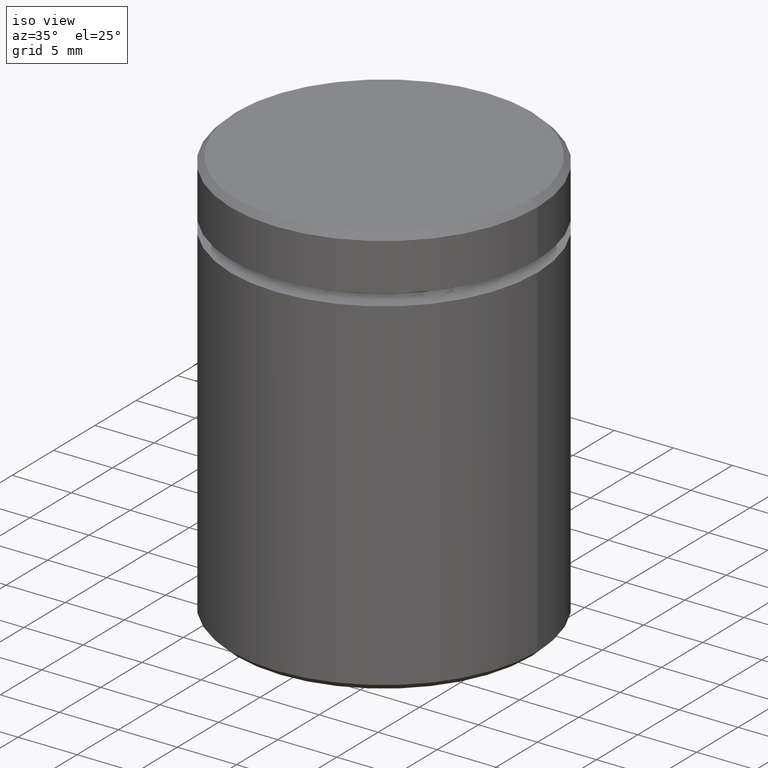
[diagram: clean part render]
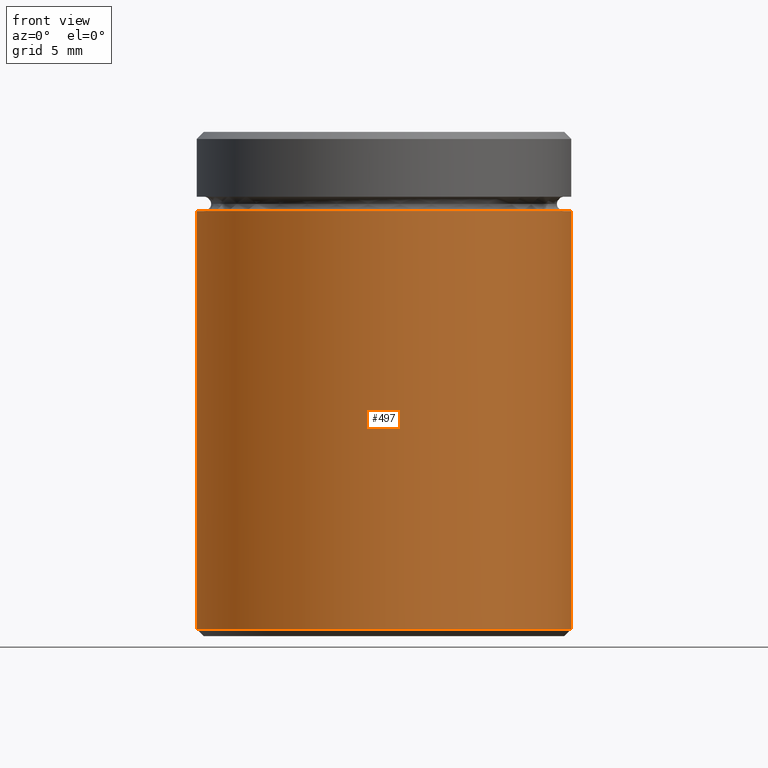
[diagram: tour spotlight — one face highlighted and labeled with its STEP entity id]
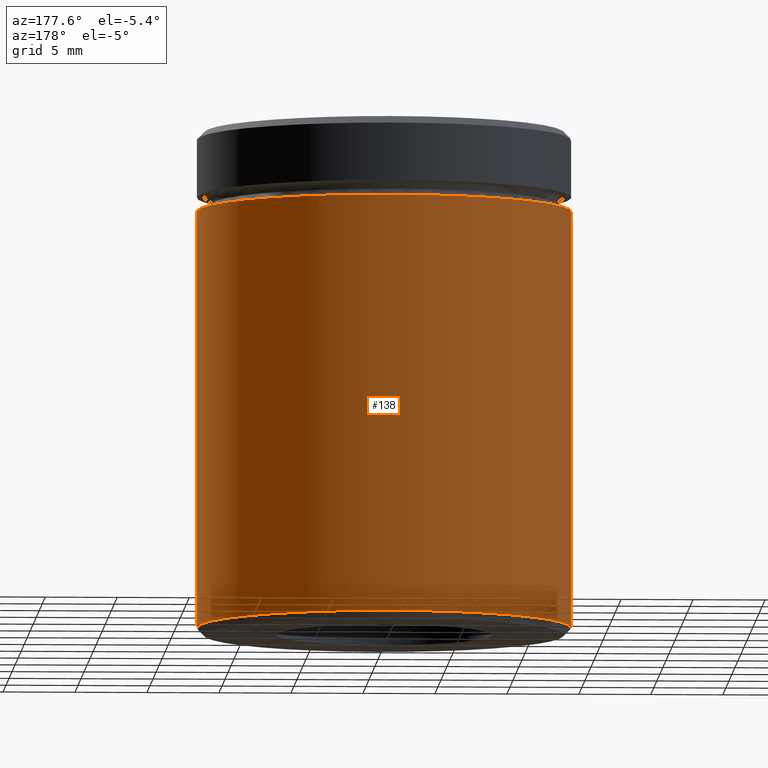
[diagram: tour spotlight — one face highlighted and labeled with its STEP entity id]
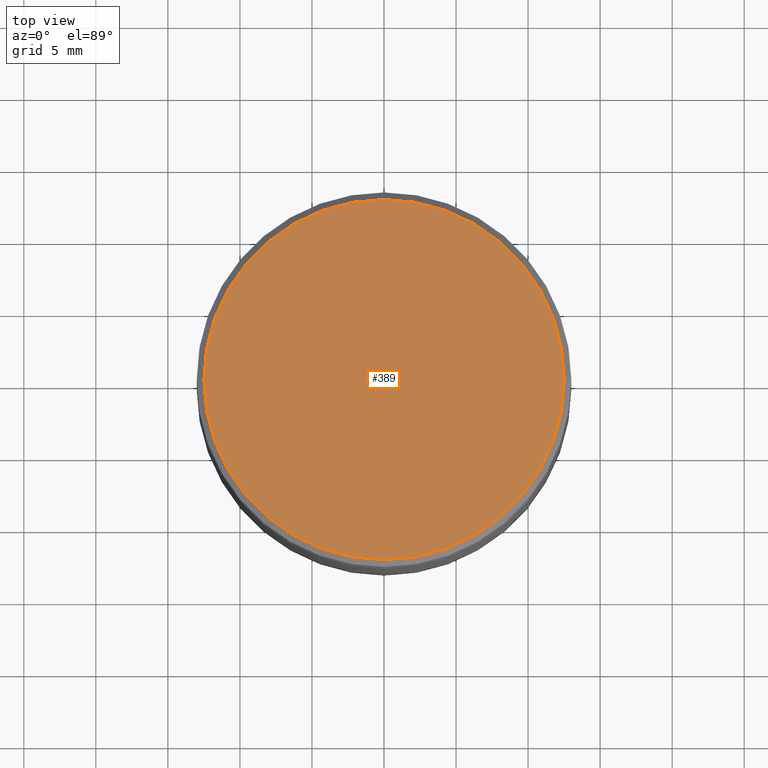
[diagram: tour spotlight — one face highlighted and labeled with its STEP entity id]
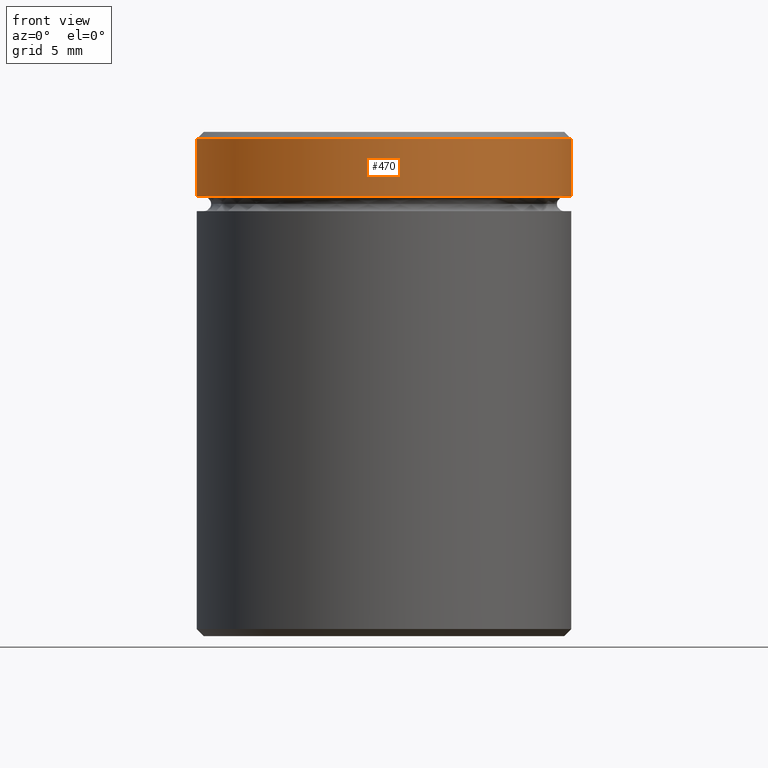
[diagram: tour spotlight — one face highlighted and labeled with its STEP entity id]
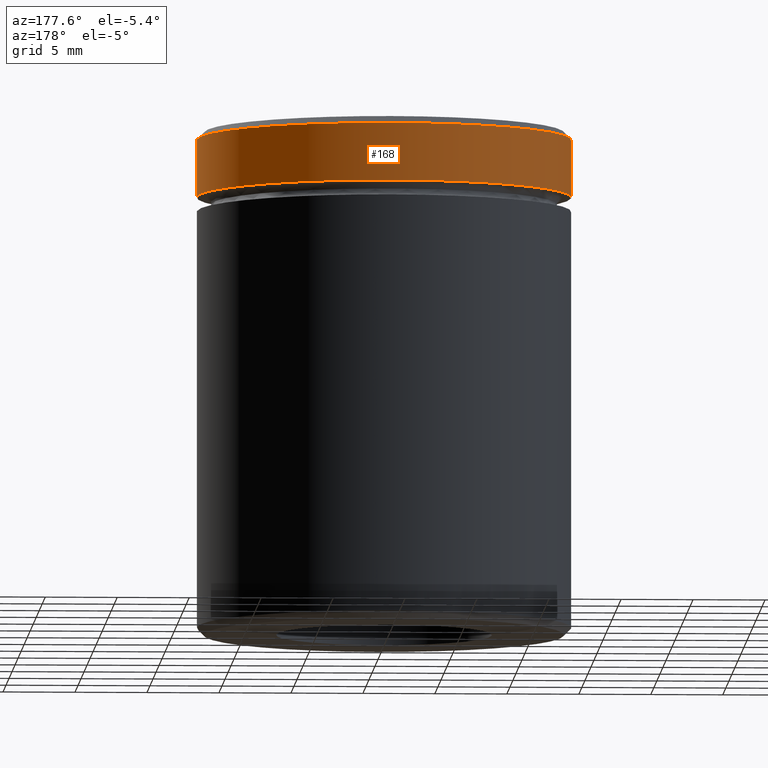
[diagram: tour spotlight — one face highlighted and labeled with its STEP entity id]
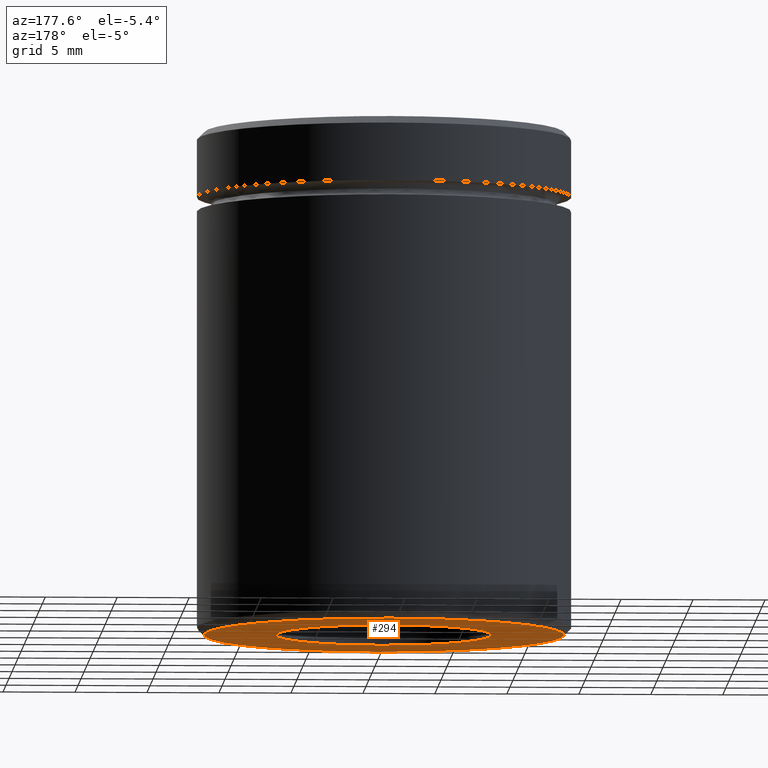
[diagram: tour spotlight — one face highlighted and labeled with its STEP entity id]
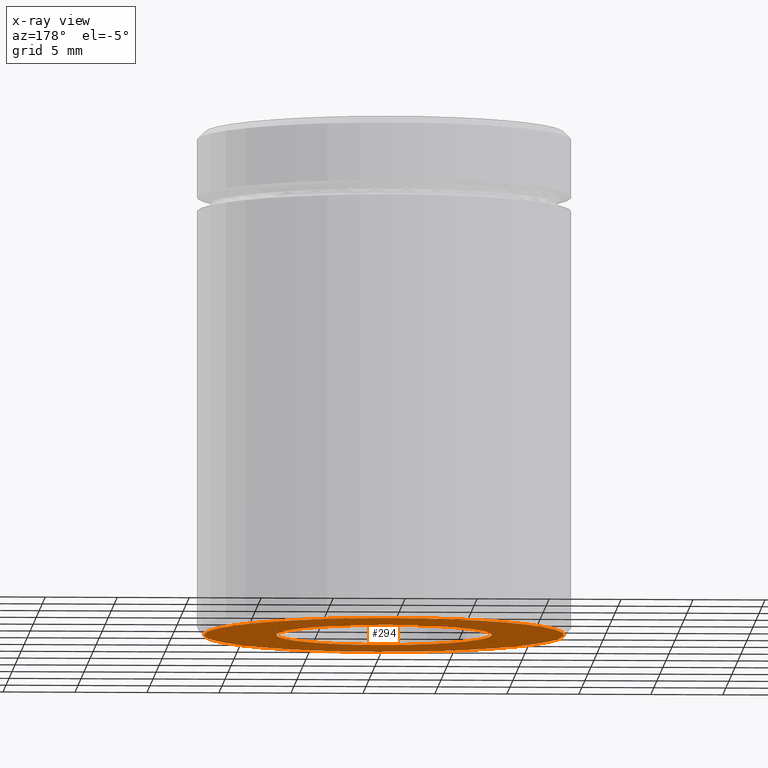
[diagram: x-ray of the same camera — body ghosted, this tour face saturated]
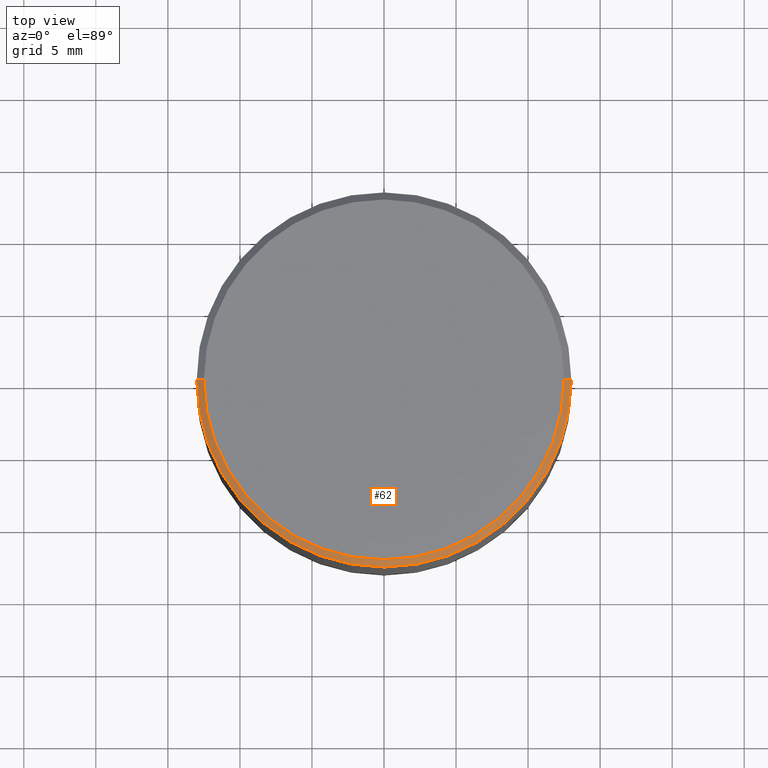
[diagram: tour spotlight — one face highlighted and labeled with its STEP entity id]
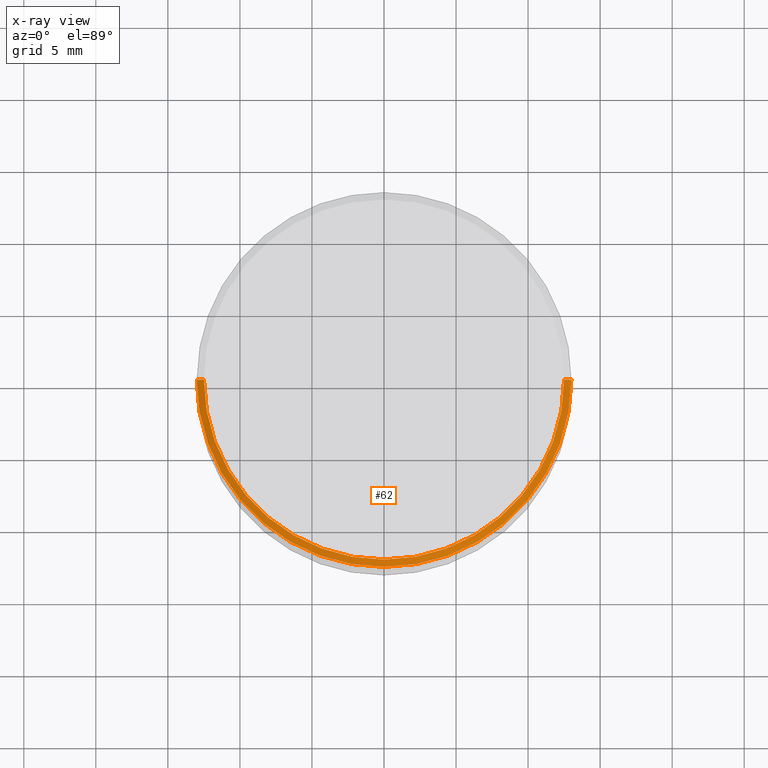
[diagram: x-ray of the same camera — body ghosted, this tour face saturated]
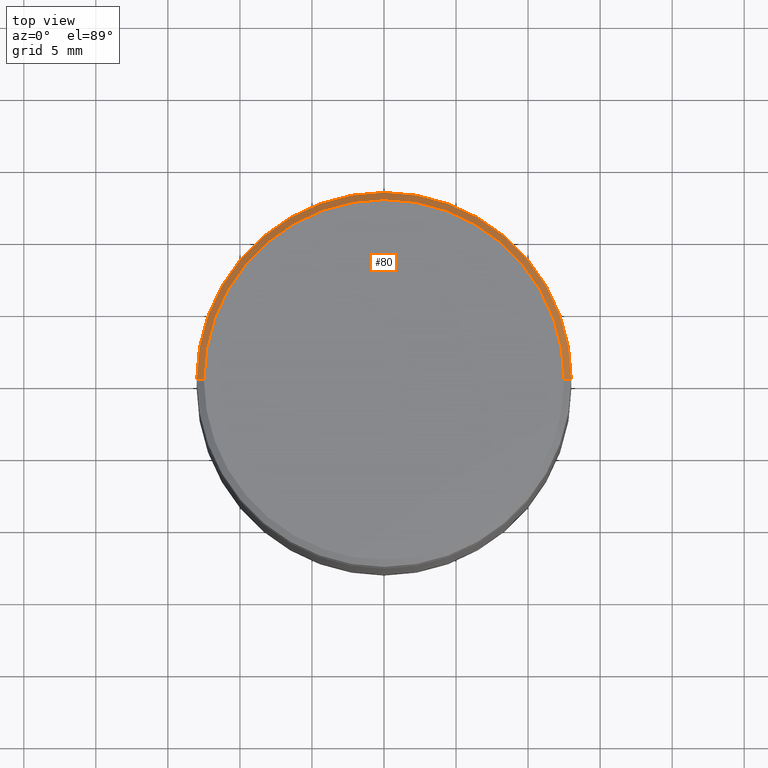
[diagram: tour spotlight — one face highlighted and labeled with its STEP entity id]
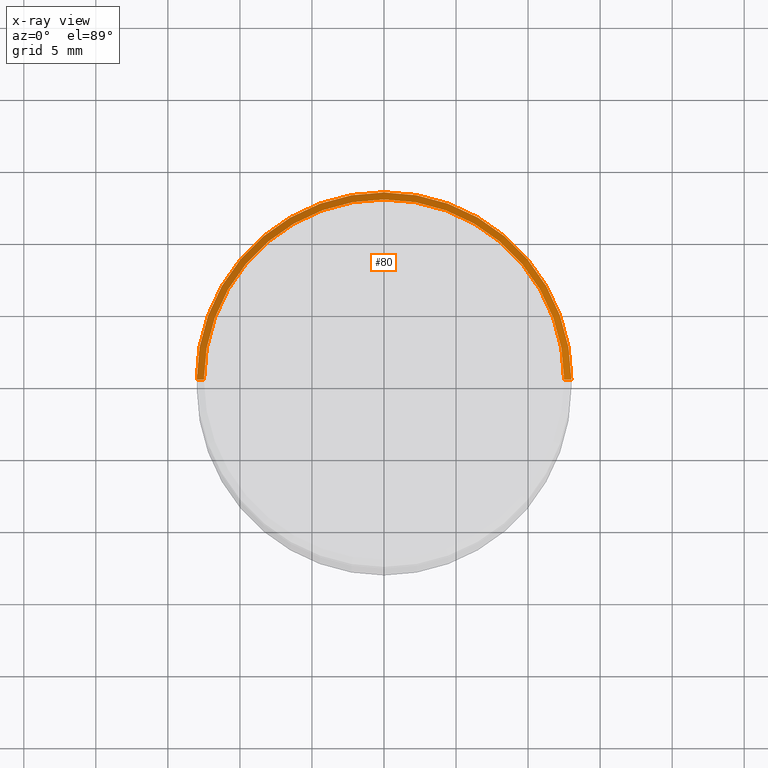
[diagram: x-ray of the same camera — body ghosted, this tour face saturated]
A machine part: a face-by-face anatomy tour. The part has 19 B-rep faces; the first image is the clean iso view, then the 8 largest visible faces are spotlighted one at a time (largest first), each with its STEP entity span.

Face 1 — front view, entity #497. In plain terms, the highlighted cylindrical surface (partial cylindrical patch) has radius 13 mm, axis along (-0, -0, 1).
Definition (entity closure, byte-faithful):
#5 = CARTESIAN_POINT ( 'NONE',  ( -13.00000000000000000, 1.592040838891559095E-15, -34.49999999999999289 ) ) ;
#10 = LINE ( 'NONE', #172, #146 ) ;
#28 = DIRECTION ( 'NONE',  ( 1.000000000000000000, 0.000000000000000000, 0.000000000000000000 ) ) ;
#96 = VERTEX_POINT ( 'NONE', #159 ) ;
#128 = EDGE_CURVE ( 'NONE', #96, #208, #10, .T. ) ;
#143 = ORIENTED_EDGE ( 'NONE', *, *, #414, .T. ) ;
#146 = VECTOR ( 'NONE', #179, 1000.000000000000000 ) ;
#159 = CARTESIAN_POINT ( 'NONE',  ( 13.00000000000000000, 0.000000000000000000, -34.49999999999999289 ) ) ;
#169 = VERTEX_POINT ( 'NONE', #5 ) ;
#172 = CARTESIAN_POINT ( 'NONE',  ( 13.00000000000000000, 0.000000000000000000, 0.000000000000000000 ) ) ;
#176 = EDGE_CURVE ( 'NONE', #169, #445, #401, .T. ) ;
#179 = DIRECTION ( 'NONE',  ( -0.000000000000000000, -0.000000000000000000, 1.000000000000000000 ) ) ;
#188 = DIRECTION ( 'NONE',  ( -0.000000000000000000, -0.000000000000000000, 1.000000000000000000 ) ) ;
#208 = VERTEX_POINT ( 'NONE', #278 ) ;
#244 = CARTESIAN_POINT ( 'NONE',  ( 0.000000000000000000, 0.000000000000000000, -5.500000000000000000 ) ) ;
#278 = CARTESIAN_POINT ( 'NONE',  ( 13.00000000000000000, 0.000000000000000000, -5.500000000000000000 ) ) ;
#301 = CIRCLE ( 'NONE', #492, 13.00000000000000000 ) ;
#320 = CARTESIAN_POINT ( 'NONE',  ( -13.00000000000000000, 1.592040838891559095E-15, 0.000000000000000000 ) ) ;
#326 = AXIS2_PLACEMENT_3D ( 'NONE', #344, #346, #28 ) ;
#344 = CARTESIAN_POINT ( 'NONE',  ( 0.000000000000000000, 0.000000000000000000, 0.000000000000000000 ) ) ;
#346 = DIRECTION ( 'NONE',  ( -0.000000000000000000, -0.000000000000000000, 1.000000000000000000 ) ) ;
#377 = DIRECTION ( 'NONE',  ( -1.000000000000000000, 0.000000000000000000, 0.000000000000000000 ) ) ;
#396 = EDGE_CURVE ( 'NONE', #445, #208, #437, .T. ) ;
#401 = LINE ( 'NONE', #320, #430 ) ;
#414 = EDGE_CURVE ( 'NONE', #169, #96, #301, .T. ) ;
#424 = DIRECTION ( 'NONE',  ( -0.000000000000000000, -0.000000000000000000, 1.000000000000000000 ) ) ;
#430 = VECTOR ( 'NONE', #448, 1000.000000000000000 ) ;
#437 = CIRCLE ( 'NONE', #531, 13.00000000000000000 ) ;
#445 = VERTEX_POINT ( 'NONE', #562 ) ;
#448 = DIRECTION ( 'NONE',  ( -0.000000000000000000, -0.000000000000000000, 1.000000000000000000 ) ) ;
#457 = DIRECTION ( 'NONE',  ( 1.000000000000000000, 0.000000000000000000, 0.000000000000000000 ) ) ;
#492 = AXIS2_PLACEMENT_3D ( 'NONE', #556, #188, #377 ) ;
#495 = ORIENTED_EDGE ( 'NONE', *, *, #176, .F. ) ;
#497 = ADVANCED_FACE ( 'NONE', ( #563 ), #564, .T. ) ;
#498 = ORIENTED_EDGE ( 'NONE', *, *, #396, .F. ) ;
#508 = ORIENTED_EDGE ( 'NONE', *, *, #128, .T. ) ;
#526 = EDGE_LOOP ( 'NONE', ( #495, #143, #508, #498 ) ) ;
#531 = AXIS2_PLACEMENT_3D ( 'NONE', #244, #424, #457 ) ;
#556 = CARTESIAN_POINT ( 'NONE',  ( 0.000000000000000000, 0.000000000000000000, -34.49999999999999289 ) ) ;
#562 = CARTESIAN_POINT ( 'NONE',  ( -13.00000000000000000, 1.592040838891559095E-15, -5.500000000000000000 ) ) ;
#563 = FACE_OUTER_BOUND ( 'NONE', #526, .T. ) ;
#564 = CYLINDRICAL_SURFACE ( 'NONE', #326, 13.00000000000000000 ) ;

Face 2 — auxiliary view, entity #138. In plain terms, the highlighted cylindrical surface (partial cylindrical patch) has radius 13 mm, axis along (-0, -0, 1).
Definition (entity closure, byte-faithful):
#5 = CARTESIAN_POINT ( 'NONE',  ( -13.00000000000000000, 1.592040838891559095E-15, -34.49999999999999289 ) ) ;
#10 = LINE ( 'NONE', #172, #146 ) ;
#48 = CARTESIAN_POINT ( 'NONE',  ( 0.000000000000000000, 0.000000000000000000, -5.500000000000000000 ) ) ;
#49 = CIRCLE ( 'NONE', #384, 13.00000000000000000 ) ;
#73 = DIRECTION ( 'NONE',  ( -1.000000000000000000, 0.000000000000000000, 0.000000000000000000 ) ) ;
#96 = VERTEX_POINT ( 'NONE', #159 ) ;
#121 = EDGE_CURVE ( 'NONE', #208, #445, #416, .T. ) ;
#125 = ORIENTED_EDGE ( 'NONE', *, *, #121, .F. ) ;
#128 = EDGE_CURVE ( 'NONE', #96, #208, #10, .T. ) ;
#131 = DIRECTION ( 'NONE',  ( -0.000000000000000000, -0.000000000000000000, 1.000000000000000000 ) ) ;
#138 = ADVANCED_FACE ( 'NONE', ( #362 ), #490, .T. ) ;
#146 = VECTOR ( 'NONE', #179, 1000.000000000000000 ) ;
#159 = CARTESIAN_POINT ( 'NONE',  ( 13.00000000000000000, 0.000000000000000000, -34.49999999999999289 ) ) ;
#162 = AXIS2_PLACEMENT_3D ( 'NONE', #48, #440, #406 ) ;
#169 = VERTEX_POINT ( 'NONE', #5 ) ;
#172 = CARTESIAN_POINT ( 'NONE',  ( 13.00000000000000000, 0.000000000000000000, 0.000000000000000000 ) ) ;
#176 = EDGE_CURVE ( 'NONE', #169, #445, #401, .T. ) ;
#179 = DIRECTION ( 'NONE',  ( -0.000000000000000000, -0.000000000000000000, 1.000000000000000000 ) ) ;
#208 = VERTEX_POINT ( 'NONE', #278 ) ;
#221 = CARTESIAN_POINT ( 'NONE',  ( 0.000000000000000000, 0.000000000000000000, 0.000000000000000000 ) ) ;
#224 = ORIENTED_EDGE ( 'NONE', *, *, #515, .T. ) ;
#246 = ORIENTED_EDGE ( 'NONE', *, *, #176, .T. ) ;
#263 = ORIENTED_EDGE ( 'NONE', *, *, #128, .F. ) ;
#278 = CARTESIAN_POINT ( 'NONE',  ( 13.00000000000000000, 0.000000000000000000, -5.500000000000000000 ) ) ;
#298 = DIRECTION ( 'NONE',  ( -0.000000000000000000, -0.000000000000000000, 1.000000000000000000 ) ) ;
#313 = AXIS2_PLACEMENT_3D ( 'NONE', #221, #131, #532 ) ;
#320 = CARTESIAN_POINT ( 'NONE',  ( -13.00000000000000000, 1.592040838891559095E-15, 0.000000000000000000 ) ) ;
#362 = FACE_OUTER_BOUND ( 'NONE', #409, .T. ) ;
#384 = AXIS2_PLACEMENT_3D ( 'NONE', #473, #298, #73 ) ;
#401 = LINE ( 'NONE', #320, #430 ) ;
#406 = DIRECTION ( 'NONE',  ( 1.000000000000000000, 0.000000000000000000, 0.000000000000000000 ) ) ;
#409 = EDGE_LOOP ( 'NONE', ( #224, #246, #125, #263 ) ) ;
#416 = CIRCLE ( 'NONE', #162, 13.00000000000000000 ) ;
#430 = VECTOR ( 'NONE', #448, 1000.000000000000000 ) ;
#440 = DIRECTION ( 'NONE',  ( -0.000000000000000000, -0.000000000000000000, 1.000000000000000000 ) ) ;
#445 = VERTEX_POINT ( 'NONE', #562 ) ;
#448 = DIRECTION ( 'NONE',  ( -0.000000000000000000, -0.000000000000000000, 1.000000000000000000 ) ) ;
#473 = CARTESIAN_POINT ( 'NONE',  ( 0.000000000000000000, 0.000000000000000000, -34.49999999999999289 ) ) ;
#490 = CYLINDRICAL_SURFACE ( 'NONE', #313, 13.00000000000000000 ) ;
#515 = EDGE_CURVE ( 'NONE', #96, #169, #49, .T. ) ;
#532 = DIRECTION ( 'NONE',  ( 1.000000000000000000, 0.000000000000000000, 0.000000000000000000 ) ) ;
#562 = CARTESIAN_POINT ( 'NONE',  ( -13.00000000000000000, 1.592040838891559095E-15, -5.500000000000000000 ) ) ;

Face 3 — top view, entity #389. In plain terms, the highlighted planar face has unit normal (0, -0, 1).
Definition (entity closure, byte-faithful):
#30 = CIRCLE ( 'NONE', #561, 12.49999999999999112 ) ;
#42 = DIRECTION ( 'NONE',  ( -0.000000000000000000, -0.000000000000000000, 1.000000000000000000 ) ) ;
#57 = VERTEX_POINT ( 'NONE', #322 ) ;
#76 = AXIS2_PLACEMENT_3D ( 'NONE', #536, #42, #485 ) ;
#115 = CARTESIAN_POINT ( 'NONE',  ( 0.000000000000000000, 0.000000000000000000, 0.000000000000000000 ) ) ;
#149 = EDGE_CURVE ( 'NONE', #57, #569, #230, .T. ) ;
#157 = PLANE ( 'NONE',  #357 ) ;
#230 = CIRCLE ( 'NONE', #76, 12.49999999999999112 ) ;
#237 = DIRECTION ( 'NONE',  ( 1.000000000000000000, 0.000000000000000000, 0.000000000000000000 ) ) ;
#289 = DIRECTION ( 'NONE',  ( -0.000000000000000000, -0.000000000000000000, 1.000000000000000000 ) ) ;
#302 = EDGE_CURVE ( 'NONE', #569, #57, #30, .T. ) ;
#322 = CARTESIAN_POINT ( 'NONE',  ( -12.49999999999999112, 0.000000000000000000, 0.000000000000000000 ) ) ;
#329 = ORIENTED_EDGE ( 'NONE', *, *, #302, .T. ) ;
#335 = CARTESIAN_POINT ( 'NONE',  ( 0.000000000000000000, 0.000000000000000000, 0.000000000000000000 ) ) ;
#350 = EDGE_LOOP ( 'NONE', ( #435, #329 ) ) ;
#357 = AXIS2_PLACEMENT_3D ( 'NONE', #115, #467, #237 ) ;
#373 = DIRECTION ( 'NONE',  ( 1.000000000000000000, 0.000000000000000000, 0.000000000000000000 ) ) ;
#389 = ADVANCED_FACE ( 'NONE', ( #555 ), #157, .T. ) ;
#433 = CARTESIAN_POINT ( 'NONE',  ( 12.49999999999999112, 1.561424668912874519E-15, 0.000000000000000000 ) ) ;
#435 = ORIENTED_EDGE ( 'NONE', *, *, #149, .T. ) ;
#467 = DIRECTION ( 'NONE',  ( 0.000000000000000000, -0.000000000000000000, 1.000000000000000000 ) ) ;
#485 = DIRECTION ( 'NONE',  ( 1.000000000000000000, 0.000000000000000000, 0.000000000000000000 ) ) ;
#536 = CARTESIAN_POINT ( 'NONE',  ( 0.000000000000000000, 0.000000000000000000, 0.000000000000000000 ) ) ;
#555 = FACE_OUTER_BOUND ( 'NONE', #350, .T. ) ;
#561 = AXIS2_PLACEMENT_3D ( 'NONE', #335, #289, #373 ) ;
#569 = VERTEX_POINT ( 'NONE', #433 ) ;

Face 4 — front view, entity #470. In plain terms, the highlighted cylindrical surface (partial cylindrical patch) has radius 13 mm, axis along (-0, -0, 1).
Definition (entity closure, byte-faithful):
#18 = DIRECTION ( 'NONE',  ( -0.000000000000000000, -0.000000000000000000, 1.000000000000000000 ) ) ;
#26 = CARTESIAN_POINT ( 'NONE',  ( 13.00000000000000000, 0.000000000000000000, -0.5000000000000073275 ) ) ;
#46 = AXIS2_PLACEMENT_3D ( 'NONE', #421, #141, #291 ) ;
#51 = ORIENTED_EDGE ( 'NONE', *, *, #405, .T. ) ;
#64 = CARTESIAN_POINT ( 'NONE',  ( 13.00000000000000000, 0.000000000000000000, -4.500000000000000888 ) ) ;
#68 = EDGE_CURVE ( 'NONE', #449, #342, #552, .T. ) ;
#71 = CARTESIAN_POINT ( 'NONE',  ( -13.00000000000000000, 1.592040838891559095E-15, -4.500000000000000888 ) ) ;
#124 = FACE_OUTER_BOUND ( 'NONE', #441, .T. ) ;
#137 = LINE ( 'NONE', #411, #395 ) ;
#141 = DIRECTION ( 'NONE',  ( -0.000000000000000000, -0.000000000000000000, 1.000000000000000000 ) ) ;
#158 = EDGE_CURVE ( 'NONE', #449, #553, #137, .T. ) ;
#170 = AXIS2_PLACEMENT_3D ( 'NONE', #549, #333, #455 ) ;
#197 = DIRECTION ( 'NONE',  ( -0.000000000000000000, -0.000000000000000000, 1.000000000000000000 ) ) ;
#200 = CARTESIAN_POINT ( 'NONE',  ( 0.000000000000000000, 0.000000000000000000, 0.000000000000000000 ) ) ;
#202 = CYLINDRICAL_SURFACE ( 'NONE', #494, 13.00000000000000000 ) ;
#210 = ORIENTED_EDGE ( 'NONE', *, *, #330, .T. ) ;
#218 = ORIENTED_EDGE ( 'NONE', *, *, #158, .F. ) ;
#223 = CARTESIAN_POINT ( 'NONE',  ( 13.00000000000000000, 0.000000000000000000, 0.000000000000000000 ) ) ;
#291 = DIRECTION ( 'NONE',  ( 1.000000000000000000, 0.000000000000000000, 0.000000000000000000 ) ) ;
#297 = CARTESIAN_POINT ( 'NONE',  ( -13.00000000000000000, 1.592040838891559095E-15, -0.5000000000000073275 ) ) ;
#330 = EDGE_CURVE ( 'NONE', #402, #553, #566, .T. ) ;
#333 = DIRECTION ( 'NONE',  ( 0.000000000000000000, 0.000000000000000000, -1.000000000000000000 ) ) ;
#342 = VERTEX_POINT ( 'NONE', #64 ) ;
#347 = VECTOR ( 'NONE', #18, 1000.000000000000000 ) ;
#385 = LINE ( 'NONE', #223, #347 ) ;
#390 = ORIENTED_EDGE ( 'NONE', *, *, #68, .T. ) ;
#393 = DIRECTION ( 'NONE',  ( 1.000000000000000000, 0.000000000000000000, 0.000000000000000000 ) ) ;
#395 = VECTOR ( 'NONE', #442, 1000.000000000000000 ) ;
#402 = VERTEX_POINT ( 'NONE', #26 ) ;
#405 = EDGE_CURVE ( 'NONE', #342, #402, #385, .T. ) ;
#411 = CARTESIAN_POINT ( 'NONE',  ( -13.00000000000000000, 1.592040838891559095E-15, 0.000000000000000000 ) ) ;
#421 = CARTESIAN_POINT ( 'NONE',  ( 0.000000000000000000, 0.000000000000000000, -4.500000000000000888 ) ) ;
#441 = EDGE_LOOP ( 'NONE', ( #218, #390, #51, #210 ) ) ;
#442 = DIRECTION ( 'NONE',  ( -0.000000000000000000, -0.000000000000000000, 1.000000000000000000 ) ) ;
#449 = VERTEX_POINT ( 'NONE', #71 ) ;
#455 = DIRECTION ( 'NONE',  ( 1.000000000000000000, 0.000000000000000000, 0.000000000000000000 ) ) ;
#470 = ADVANCED_FACE ( 'NONE', ( #124 ), #202, .T. ) ;
#494 = AXIS2_PLACEMENT_3D ( 'NONE', #200, #197, #393 ) ;
#549 = CARTESIAN_POINT ( 'NONE',  ( 0.000000000000000000, 0.000000000000000000, -0.5000000000000073275 ) ) ;
#552 = CIRCLE ( 'NONE', #46, 13.00000000000000000 ) ;
#553 = VERTEX_POINT ( 'NONE', #297 ) ;
#566 = CIRCLE ( 'NONE', #170, 13.00000000000000000 ) ;

Face 5 — auxiliary view, entity #168. In plain terms, the highlighted cylindrical surface (partial cylindrical patch) has radius 13 mm, axis along (-0, -0, 1).
Definition (entity closure, byte-faithful):
#11 = ORIENTED_EDGE ( 'NONE', *, *, #19, .T. ) ;
#14 = DIRECTION ( 'NONE',  ( -0.000000000000000000, -0.000000000000000000, 1.000000000000000000 ) ) ;
#18 = DIRECTION ( 'NONE',  ( -0.000000000000000000, -0.000000000000000000, 1.000000000000000000 ) ) ;
#19 = EDGE_CURVE ( 'NONE', #553, #402, #295, .T. ) ;
#26 = CARTESIAN_POINT ( 'NONE',  ( 13.00000000000000000, 0.000000000000000000, -0.5000000000000073275 ) ) ;
#33 = DIRECTION ( 'NONE',  ( -0.000000000000000000, -0.000000000000000000, 1.000000000000000000 ) ) ;
#64 = CARTESIAN_POINT ( 'NONE',  ( 13.00000000000000000, 0.000000000000000000, -4.500000000000000888 ) ) ;
#71 = CARTESIAN_POINT ( 'NONE',  ( -13.00000000000000000, 1.592040838891559095E-15, -4.500000000000000888 ) ) ;
#103 = DIRECTION ( 'NONE',  ( 0.000000000000000000, 0.000000000000000000, -1.000000000000000000 ) ) ;
#135 = CYLINDRICAL_SURFACE ( 'NONE', #205, 13.00000000000000000 ) ;
#137 = LINE ( 'NONE', #411, #395 ) ;
#139 = ORIENTED_EDGE ( 'NONE', *, *, #405, .F. ) ;
#145 = DIRECTION ( 'NONE',  ( 1.000000000000000000, 0.000000000000000000, 0.000000000000000000 ) ) ;
#158 = EDGE_CURVE ( 'NONE', #449, #553, #137, .T. ) ;
#167 = DIRECTION ( 'NONE',  ( 1.000000000000000000, 0.000000000000000000, 0.000000000000000000 ) ) ;
#168 = ADVANCED_FACE ( 'NONE', ( #315 ), #135, .T. ) ;
#194 = ORIENTED_EDGE ( 'NONE', *, *, #158, .T. ) ;
#205 = AXIS2_PLACEMENT_3D ( 'NONE', #209, #14, #271 ) ;
#209 = CARTESIAN_POINT ( 'NONE',  ( 0.000000000000000000, 0.000000000000000000, 0.000000000000000000 ) ) ;
#223 = CARTESIAN_POINT ( 'NONE',  ( 13.00000000000000000, 0.000000000000000000, 0.000000000000000000 ) ) ;
#228 = ORIENTED_EDGE ( 'NONE', *, *, #548, .T. ) ;
#271 = DIRECTION ( 'NONE',  ( 1.000000000000000000, 0.000000000000000000, 0.000000000000000000 ) ) ;
#276 = CARTESIAN_POINT ( 'NONE',  ( 0.000000000000000000, 0.000000000000000000, -0.5000000000000073275 ) ) ;
#287 = AXIS2_PLACEMENT_3D ( 'NONE', #276, #103, #145 ) ;
#295 = CIRCLE ( 'NONE', #287, 13.00000000000000000 ) ;
#297 = CARTESIAN_POINT ( 'NONE',  ( -13.00000000000000000, 1.592040838891559095E-15, -0.5000000000000073275 ) ) ;
#315 = FACE_OUTER_BOUND ( 'NONE', #318, .T. ) ;
#318 = EDGE_LOOP ( 'NONE', ( #228, #194, #11, #139 ) ) ;
#342 = VERTEX_POINT ( 'NONE', #64 ) ;
#347 = VECTOR ( 'NONE', #18, 1000.000000000000000 ) ;
#385 = LINE ( 'NONE', #223, #347 ) ;
#395 = VECTOR ( 'NONE', #442, 1000.000000000000000 ) ;
#402 = VERTEX_POINT ( 'NONE', #26 ) ;
#405 = EDGE_CURVE ( 'NONE', #342, #402, #385, .T. ) ;
#411 = CARTESIAN_POINT ( 'NONE',  ( -13.00000000000000000, 1.592040838891559095E-15, 0.000000000000000000 ) ) ;
#413 = AXIS2_PLACEMENT_3D ( 'NONE', #516, #33, #167 ) ;
#442 = DIRECTION ( 'NONE',  ( -0.000000000000000000, -0.000000000000000000, 1.000000000000000000 ) ) ;
#449 = VERTEX_POINT ( 'NONE', #71 ) ;
#516 = CARTESIAN_POINT ( 'NONE',  ( 0.000000000000000000, 0.000000000000000000, -4.500000000000000888 ) ) ;
#518 = CIRCLE ( 'NONE', #413, 13.00000000000000000 ) ;
#548 = EDGE_CURVE ( 'NONE', #342, #449, #518, .T. ) ;
#553 = VERTEX_POINT ( 'NONE', #297 ) ;

Face 6 — auxiliary view, entity #294. An x-ray twin of the same camera follows (body ghosted, this face saturated) — the face is partly hidden behind the body. In plain terms, the highlighted planar face has unit normal (0, 0, -1).
Definition (entity closure, byte-faithful):
#1 = DIRECTION ( 'NONE',  ( -1.000000000000000000, 0.000000000000000000, 0.000000000000000000 ) ) ;
#2 = VERTEX_POINT ( 'NONE', #400 ) ;
#9 = EDGE_CURVE ( 'NONE', #316, #37, #460, .T. ) ;
#16 = AXIS2_PLACEMENT_3D ( 'NONE', #267, #398, #1 ) ;
#32 = EDGE_CURVE ( 'NONE', #37, #316, #491, .T. ) ;
#35 = AXIS2_PLACEMENT_3D ( 'NONE', #118, #345, #509 ) ;
#37 = VERTEX_POINT ( 'NONE', #545 ) ;
#69 = FACE_OUTER_BOUND ( 'NONE', #92, .T. ) ;
#92 = EDGE_LOOP ( 'NONE', ( #527, #488 ) ) ;
#97 = EDGE_CURVE ( 'NONE', #2, #361, #514, .T. ) ;
#106 = EDGE_CURVE ( 'NONE', #361, #2, #262, .T. ) ;
#114 = ORIENTED_EDGE ( 'NONE', *, *, #106, .F. ) ;
#117 = AXIS2_PLACEMENT_3D ( 'NONE', #292, #382, #379 ) ;
#118 = CARTESIAN_POINT ( 'NONE',  ( 0.000000000000000000, 0.000000000000000000, -35.00000000000000000 ) ) ;
#190 = PLANE ( 'NONE',  #117 ) ;
#229 = AXIS2_PLACEMENT_3D ( 'NONE', #376, #506, #283 ) ;
#243 = AXIS2_PLACEMENT_3D ( 'NONE', #367, #459, #270 ) ;
#262 = CIRCLE ( 'NONE', #16, 7.500000000000000000 ) ;
#267 = CARTESIAN_POINT ( 'NONE',  ( 0.000000000000000000, 0.000000000000000000, -35.00000000000000000 ) ) ;
#270 = DIRECTION ( 'NONE',  ( -1.000000000000000000, 0.000000000000000000, 0.000000000000000000 ) ) ;
#281 = CARTESIAN_POINT ( 'NONE',  ( 12.49999999999999112, 0.000000000000000000, -35.00000000000000000 ) ) ;
#283 = DIRECTION ( 'NONE',  ( -1.000000000000000000, 0.000000000000000000, 0.000000000000000000 ) ) ;
#292 = CARTESIAN_POINT ( 'NONE',  ( 0.000000000000000000, 13.00000000000000000, -35.00000000000000000 ) ) ;
#294 = ADVANCED_FACE ( 'NONE', ( #69, #422 ), #190, .T. ) ;
#316 = VERTEX_POINT ( 'NONE', #281 ) ;
#345 = DIRECTION ( 'NONE',  ( 0.000000000000000000, 0.000000000000000000, -1.000000000000000000 ) ) ;
#361 = VERTEX_POINT ( 'NONE', #510 ) ;
#367 = CARTESIAN_POINT ( 'NONE',  ( 0.000000000000000000, 0.000000000000000000, -35.00000000000000000 ) ) ;
#376 = CARTESIAN_POINT ( 'NONE',  ( 0.000000000000000000, 0.000000000000000000, -35.00000000000000000 ) ) ;
#379 = DIRECTION ( 'NONE',  ( -1.000000000000000000, 0.000000000000000000, -0.000000000000000000 ) ) ;
#382 = DIRECTION ( 'NONE',  ( 0.000000000000000000, 0.000000000000000000, -1.000000000000000000 ) ) ;
#398 = DIRECTION ( 'NONE',  ( 0.000000000000000000, 0.000000000000000000, -1.000000000000000000 ) ) ;
#400 = CARTESIAN_POINT ( 'NONE',  ( 7.500000000000000000, 9.184850993605147944E-16, -35.00000000000000000 ) ) ;
#410 = EDGE_LOOP ( 'NONE', ( #114, #558 ) ) ;
#422 = FACE_BOUND ( 'NONE', #410, .T. ) ;
#459 = DIRECTION ( 'NONE',  ( 0.000000000000000000, 0.000000000000000000, -1.000000000000000000 ) ) ;
#460 = CIRCLE ( 'NONE', #229, 12.49999999999999112 ) ;
#488 = ORIENTED_EDGE ( 'NONE', *, *, #32, .T. ) ;
#491 = CIRCLE ( 'NONE', #243, 12.49999999999999112 ) ;
#506 = DIRECTION ( 'NONE',  ( 0.000000000000000000, 0.000000000000000000, -1.000000000000000000 ) ) ;
#509 = DIRECTION ( 'NONE',  ( -1.000000000000000000, 0.000000000000000000, 0.000000000000000000 ) ) ;
#510 = CARTESIAN_POINT ( 'NONE',  ( -7.500000000000000000, 0.000000000000000000, -35.00000000000000000 ) ) ;
#514 = CIRCLE ( 'NONE', #35, 7.500000000000000000 ) ;
#527 = ORIENTED_EDGE ( 'NONE', *, *, #9, .T. ) ;
#545 = CARTESIAN_POINT ( 'NONE',  ( -12.49999999999999112, 1.561424668912874519E-15, -35.00000000000000000 ) ) ;
#558 = ORIENTED_EDGE ( 'NONE', *, *, #97, .F. ) ;

Face 7 — top view, entity #62. An x-ray twin of the same camera follows (body ghosted, this face saturated) — the face is partly hidden behind the body. In plain terms, the highlighted conical surface has half-angle 45 deg.
Definition (entity closure, byte-faithful):
#24 = DIRECTION ( 'NONE',  ( -1.000000000000000000, 0.000000000000000000, 0.000000000000000000 ) ) ;
#26 = CARTESIAN_POINT ( 'NONE',  ( 13.00000000000000000, 0.000000000000000000, -0.5000000000000073275 ) ) ;
#42 = DIRECTION ( 'NONE',  ( -0.000000000000000000, -0.000000000000000000, 1.000000000000000000 ) ) ;
#45 = DIRECTION ( 'NONE',  ( -0.7071067811865487940, 0.000000000000000000, -0.7071067811865463515 ) ) ;
#50 = ORIENTED_EDGE ( 'NONE', *, *, #149, .F. ) ;
#57 = VERTEX_POINT ( 'NONE', #322 ) ;
#62 = ADVANCED_FACE ( 'NONE', ( #332 ), #551, .T. ) ;
#67 = CARTESIAN_POINT ( 'NONE',  ( 0.000000000000000000, 0.000000000000000000, 0.000000000000000000 ) ) ;
#76 = AXIS2_PLACEMENT_3D ( 'NONE', #536, #42, #485 ) ;
#82 = CARTESIAN_POINT ( 'NONE',  ( 12.49999999999999112, 1.530808498934190141E-15, 0.000000000000000000 ) ) ;
#85 = VECTOR ( 'NONE', #45, 1000.000000000000000 ) ;
#95 = LINE ( 'NONE', #207, #85 ) ;
#113 = EDGE_CURVE ( 'NONE', #57, #553, #95, .T. ) ;
#149 = EDGE_CURVE ( 'NONE', #57, #569, #230, .T. ) ;
#170 = AXIS2_PLACEMENT_3D ( 'NONE', #549, #333, #455 ) ;
#204 = AXIS2_PLACEMENT_3D ( 'NONE', #67, #241, #24 ) ;
#207 = CARTESIAN_POINT ( 'NONE',  ( -12.49999999999999112, 0.000000000000000000, 0.000000000000000000 ) ) ;
#230 = CIRCLE ( 'NONE', #76, 12.49999999999999112 ) ;
#241 = DIRECTION ( 'NONE',  ( 0.000000000000000000, 0.000000000000000000, -1.000000000000000000 ) ) ;
#257 = EDGE_CURVE ( 'NONE', #569, #402, #480, .T. ) ;
#260 = DIRECTION ( 'NONE',  ( 0.7071067811865487940, 8.659560562354950115E-17, -0.7071067811865463515 ) ) ;
#297 = CARTESIAN_POINT ( 'NONE',  ( -13.00000000000000000, 1.592040838891559095E-15, -0.5000000000000073275 ) ) ;
#322 = CARTESIAN_POINT ( 'NONE',  ( -12.49999999999999112, 0.000000000000000000, 0.000000000000000000 ) ) ;
#330 = EDGE_CURVE ( 'NONE', #402, #553, #566, .T. ) ;
#332 = FACE_OUTER_BOUND ( 'NONE', #372, .T. ) ;
#333 = DIRECTION ( 'NONE',  ( 0.000000000000000000, 0.000000000000000000, -1.000000000000000000 ) ) ;
#334 = ORIENTED_EDGE ( 'NONE', *, *, #113, .T. ) ;
#358 = ORIENTED_EDGE ( 'NONE', *, *, #257, .F. ) ;
#372 = EDGE_LOOP ( 'NONE', ( #358, #50, #334, #439 ) ) ;
#402 = VERTEX_POINT ( 'NONE', #26 ) ;
#433 = CARTESIAN_POINT ( 'NONE',  ( 12.49999999999999112, 1.561424668912874519E-15, 0.000000000000000000 ) ) ;
#439 = ORIENTED_EDGE ( 'NONE', *, *, #330, .F. ) ;
#455 = DIRECTION ( 'NONE',  ( 1.000000000000000000, 0.000000000000000000, 0.000000000000000000 ) ) ;
#474 = VECTOR ( 'NONE', #260, 1000.000000000000000 ) ;
#480 = LINE ( 'NONE', #82, #474 ) ;
#485 = DIRECTION ( 'NONE',  ( 1.000000000000000000, 0.000000000000000000, 0.000000000000000000 ) ) ;
#536 = CARTESIAN_POINT ( 'NONE',  ( 0.000000000000000000, 0.000000000000000000, 0.000000000000000000 ) ) ;
#549 = CARTESIAN_POINT ( 'NONE',  ( 0.000000000000000000, 0.000000000000000000, -0.5000000000000073275 ) ) ;
#551 = CONICAL_SURFACE ( 'NONE', #204, 12.49999999999999112, 0.7853981633974500554 ) ;
#553 = VERTEX_POINT ( 'NONE', #297 ) ;
#566 = CIRCLE ( 'NONE', #170, 13.00000000000000000 ) ;
#569 = VERTEX_POINT ( 'NONE', #433 ) ;

Face 8 — top view, entity #80. An x-ray twin of the same camera follows (body ghosted, this face saturated) — the face is partly hidden behind the body. In plain terms, the highlighted conical surface has half-angle 45 deg.
Definition (entity closure, byte-faithful):
#19 = EDGE_CURVE ( 'NONE', #553, #402, #295, .T. ) ;
#21 = CARTESIAN_POINT ( 'NONE',  ( 0.000000000000000000, 0.000000000000000000, 0.000000000000000000 ) ) ;
#26 = CARTESIAN_POINT ( 'NONE',  ( 13.00000000000000000, 0.000000000000000000, -0.5000000000000073275 ) ) ;
#30 = CIRCLE ( 'NONE', #561, 12.49999999999999112 ) ;
#45 = DIRECTION ( 'NONE',  ( -0.7071067811865487940, 0.000000000000000000, -0.7071067811865463515 ) ) ;
#57 = VERTEX_POINT ( 'NONE', #322 ) ;
#58 = EDGE_LOOP ( 'NONE', ( #148, #181, #136, #160 ) ) ;
#80 = ADVANCED_FACE ( 'NONE', ( #238 ), #520, .T. ) ;
#82 = CARTESIAN_POINT ( 'NONE',  ( 12.49999999999999112, 1.530808498934190141E-15, 0.000000000000000000 ) ) ;
#85 = VECTOR ( 'NONE', #45, 1000.000000000000000 ) ;
#95 = LINE ( 'NONE', #207, #85 ) ;
#100 = DIRECTION ( 'NONE',  ( 0.000000000000000000, 0.000000000000000000, -1.000000000000000000 ) ) ;
#103 = DIRECTION ( 'NONE',  ( 0.000000000000000000, 0.000000000000000000, -1.000000000000000000 ) ) ;
#113 = EDGE_CURVE ( 'NONE', #57, #553, #95, .T. ) ;
#136 = ORIENTED_EDGE ( 'NONE', *, *, #19, .F. ) ;
#145 = DIRECTION ( 'NONE',  ( 1.000000000000000000, 0.000000000000000000, 0.000000000000000000 ) ) ;
#148 = ORIENTED_EDGE ( 'NONE', *, *, #302, .F. ) ;
#160 = ORIENTED_EDGE ( 'NONE', *, *, #113, .F. ) ;
#181 = ORIENTED_EDGE ( 'NONE', *, *, #257, .T. ) ;
#207 = CARTESIAN_POINT ( 'NONE',  ( -12.49999999999999112, 0.000000000000000000, 0.000000000000000000 ) ) ;
#238 = FACE_OUTER_BOUND ( 'NONE', #58, .T. ) ;
#257 = EDGE_CURVE ( 'NONE', #569, #402, #480, .T. ) ;
#260 = DIRECTION ( 'NONE',  ( 0.7071067811865487940, 8.659560562354950115E-17, -0.7071067811865463515 ) ) ;
#276 = CARTESIAN_POINT ( 'NONE',  ( 0.000000000000000000, 0.000000000000000000, -0.5000000000000073275 ) ) ;
#279 = DIRECTION ( 'NONE',  ( -1.000000000000000000, 0.000000000000000000, 0.000000000000000000 ) ) ;
#287 = AXIS2_PLACEMENT_3D ( 'NONE', #276, #103, #145 ) ;
#289 = DIRECTION ( 'NONE',  ( -0.000000000000000000, -0.000000000000000000, 1.000000000000000000 ) ) ;
#295 = CIRCLE ( 'NONE', #287, 13.00000000000000000 ) ;
#297 = CARTESIAN_POINT ( 'NONE',  ( -13.00000000000000000, 1.592040838891559095E-15, -0.5000000000000073275 ) ) ;
#302 = EDGE_CURVE ( 'NONE', #569, #57, #30, .T. ) ;
#322 = CARTESIAN_POINT ( 'NONE',  ( -12.49999999999999112, 0.000000000000000000, 0.000000000000000000 ) ) ;
#335 = CARTESIAN_POINT ( 'NONE',  ( 0.000000000000000000, 0.000000000000000000, 0.000000000000000000 ) ) ;
#373 = DIRECTION ( 'NONE',  ( 1.000000000000000000, 0.000000000000000000, 0.000000000000000000 ) ) ;
#402 = VERTEX_POINT ( 'NONE', #26 ) ;
#433 = CARTESIAN_POINT ( 'NONE',  ( 12.49999999999999112, 1.561424668912874519E-15, 0.000000000000000000 ) ) ;
#436 = AXIS2_PLACEMENT_3D ( 'NONE', #21, #100, #279 ) ;
#474 = VECTOR ( 'NONE', #260, 1000.000000000000000 ) ;
#480 = LINE ( 'NONE', #82, #474 ) ;
#520 = CONICAL_SURFACE ( 'NONE', #436, 12.49999999999999112, 0.7853981633974500554 ) ;
#553 = VERTEX_POINT ( 'NONE', #297 ) ;
#561 = AXIS2_PLACEMENT_3D ( 'NONE', #335, #289, #373 ) ;
#569 = VERTEX_POINT ( 'NONE', #433 ) ;